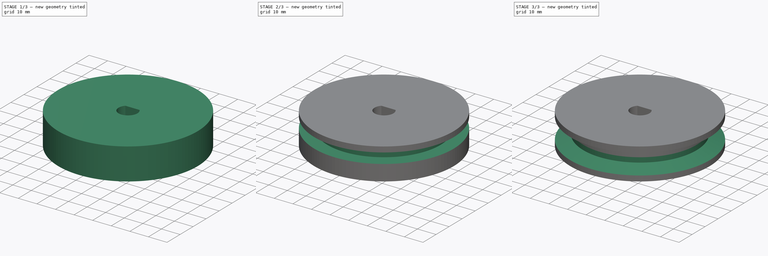
[diagram: build sequence overview — one tinted view per stage of 3, left to right]
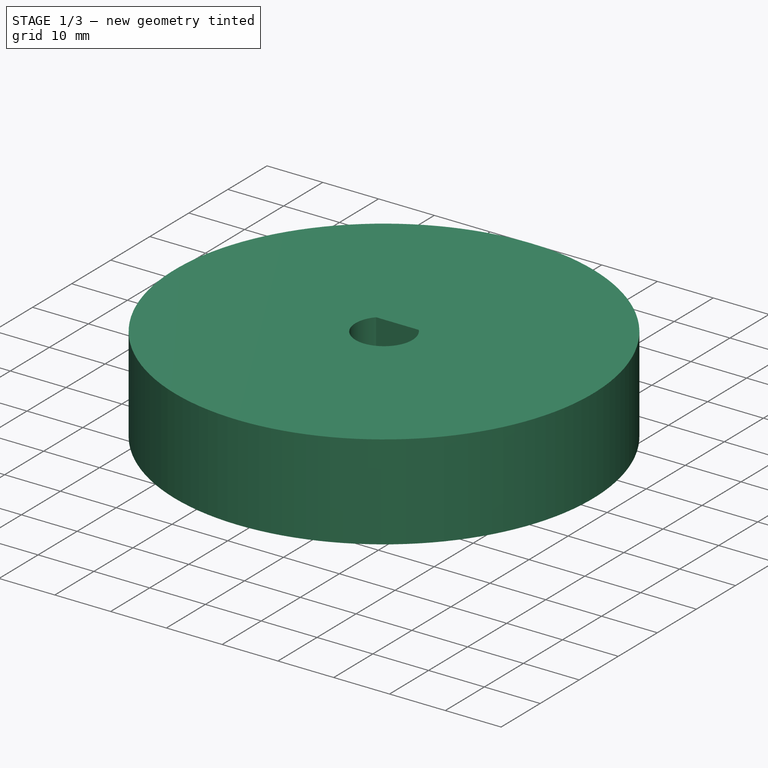
[diagram: stage 1 of 3 — iso view after this stage's code; geometry added in this stage tinted green]
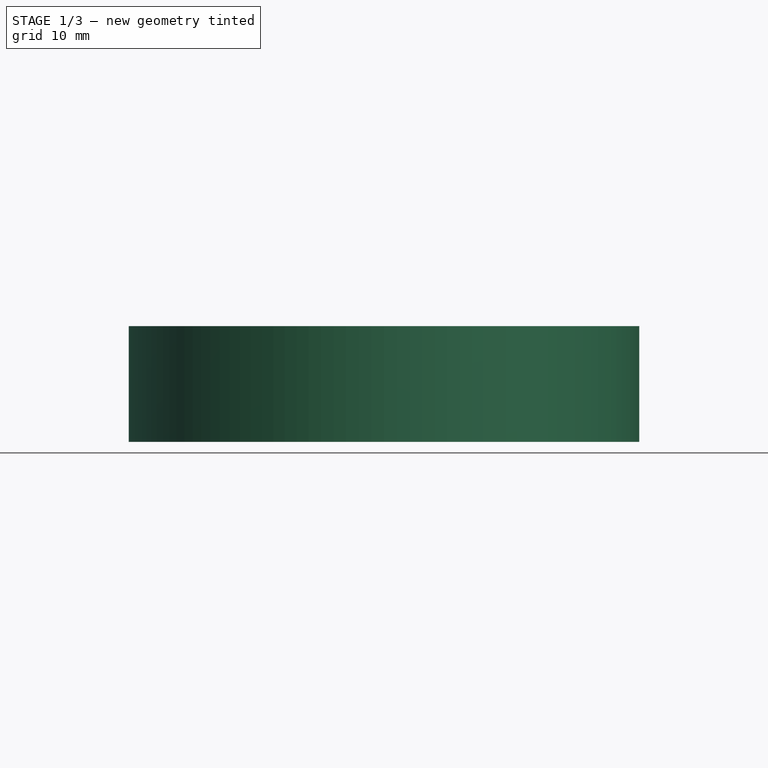
[diagram: stage 1 of 3 — front view after this stage's code; geometry added in this stage tinted green]
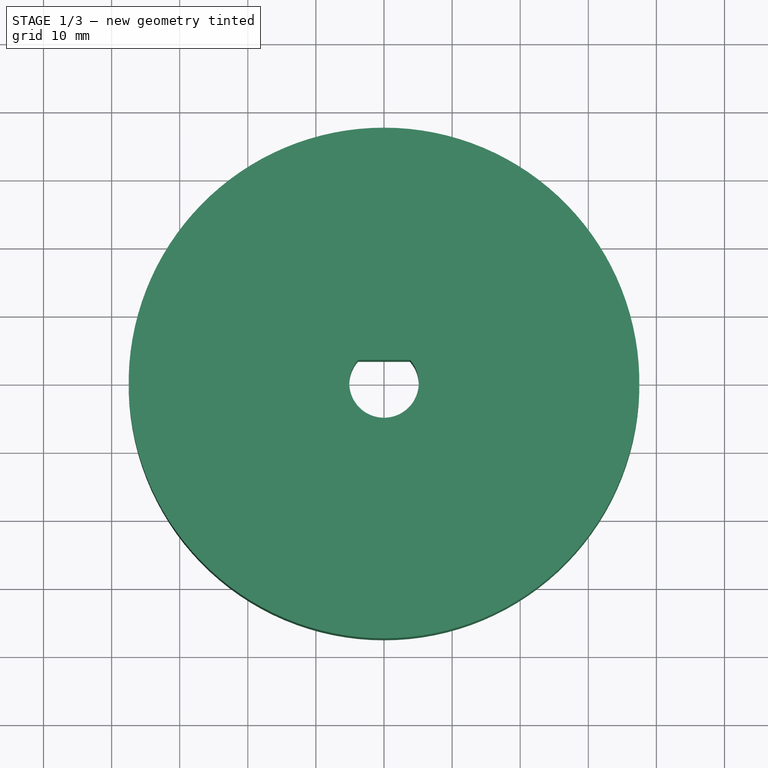
[diagram: stage 1 of 3 — top view after this stage's code; geometry added in this stage tinted green]
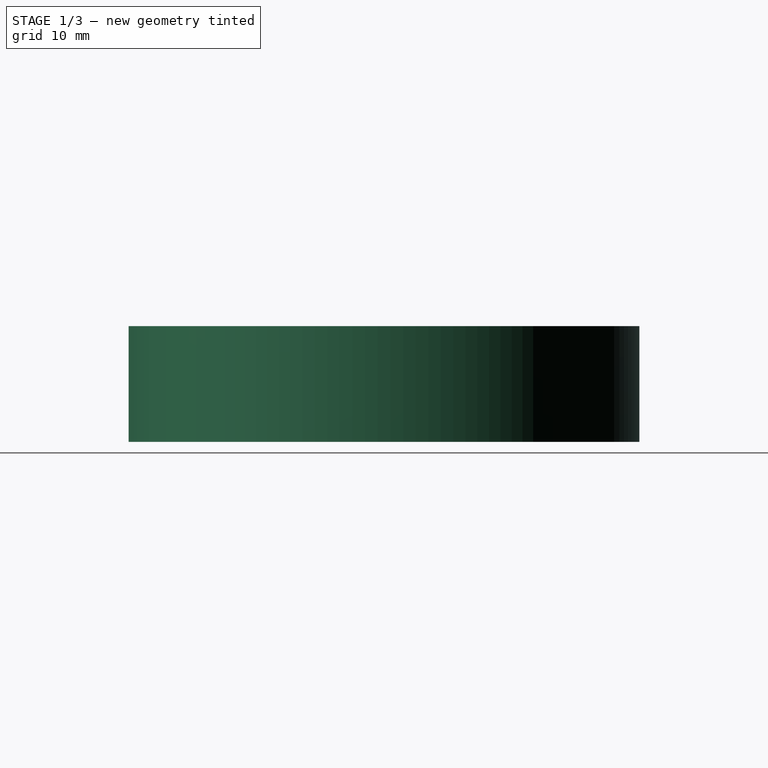
[diagram: stage 1 of 3 — right view after this stage's code; geometry added in this stage tinted green]
FCSTD DOCUMENT  (FreeCAD 0.22R35370 (Git))
Label: pulley3
License: All rights reserved
LicenseURL: http://en.wikipedia.org/wiki/All_rights_reserved
objects: Sketcher::SketchObject×4, PartDesign::Mirrored×2, PartDesign::Pad×1, PartDesign::Groove×1, PartDesign::Pocket×1, PartDesign::Body×1
note: 13 computed .brp shape members not serialized (recipe doc carries the construction recipe); baked Part::Feature solids carry a one-line shape summary decoded from their .brp

FEATURE [Sketcher::SketchObject] Sketch
  FullyConstrained = true
  MapMode = 5
  Support = -> [XY_Plane]
  sketch-geometry (11):
    g0: LineSegment StartX=1.15e-14 StartY=5.8 StartZ=0 EndX=1.65 EndY=5.8 EndZ=0
    g1: LineSegment StartX=1.65 StartY=5.8 StartZ=0 EndX=1.65 EndY=4.82571 EndZ=0
    g2: ArcOfCircle CenterX=0 CenterY=0 CenterZ=0 NormalX=0 NormalY=0 NormalZ=1 AngleXU=0 Radius=37.5 StartAngle=4.71239 EndAngle=7.85398
    g3: LineSegment StartX=1.15e-14 StartY=37.5 StartZ=0 EndX=1.15e-14 EndY=5.8 EndZ=0
    g4: LineSegment StartX=-9e-16 StartY=-5.1 StartZ=0 EndX=-6.9e-15 EndY=-37.5 EndZ=0
    g5: LineSegment StartX=1.15e-14 StartY=5.8 StartZ=0 EndX=3e-16 EndY=5.1 EndZ=0
    g6: ArcOfCircle CenterX=0 CenterY=0 CenterZ=0 NormalX=0 NormalY=0 NormalZ=1 AngleXU=0 Radius=5.1 StartAngle=1.24134 EndAngle=1.5708
    g7: LineSegment StartX=0 StartY=3.4 StartZ=0 EndX=3.80132 EndY=3.4 EndZ=0
    g8: ArcOfCircle CenterX=0 CenterY=0 CenterZ=0 NormalX=0 NormalY=0 NormalZ=1 AngleXU=0 Radius=5.1 StartAngle=4.71239 EndAngle=7.01291
    g9: ArcOfCircle CenterX=0 CenterY=0 CenterZ=0 NormalX=0 NormalY=0 NormalZ=1 AngleXU=0 Radius=5.1 StartAngle=0.729728 EndAngle=1.24134
    g10: LineSegment StartX=0 StartY=3.4 StartZ=0 EndX=3e-16 EndY=5.1 EndZ=0
  constraints (31):
    c: Coincident(g8,g-1)
    c: PointOnObject(g8,g-2)
    c: Horizontal(g0)
    c: Coincident(g0,g1)
    c: Coincident(g1,g9)
    c: Vertical(g1)
    c: Distance(g0) = 1.65
    c: Coincident(g2,g8)
    c: PointOnObject(g2,g-2)
    c: PointOnObject(g2,g-2)
    c: DistanceY(g8,g0) = 10.9
    c: Coincident(g3,g2)
    c: Coincident(g3,g0)
    c: Vertical(g3)
    c: Coincident(g4,g8)
    c: Coincident(g4,g2)
    c: Diameter(g2) = 75  'D2'
    c: Coincident(g5,g0)
    c: PointOnObject(g5,g-2)
    c: Coincident(g6,g8)
    c: Coincident(g6,g9)
    c: Coincident(g6,g5)
    c: PointOnObject(g7,g-2)
    c: Horizontal(g7)
    c: DistanceY(g8,g7) = 8.5
    c: Coincident(g8,g9)
    c: Coincident(g8,g9)
    c: Diameter(g8) = 10.2
    c: Coincident(g8,g7)
    c: Coincident(g10,g7)
    c: Coincident(g10,g5)
FEATURE [Sketcher::SketchObject] Sketch001
  FullyConstrained = true
  MapMode = 5
  Placement = pos=(0,0,0) rot=(0.57735,0.57735,0.57735;2.0944rad)
  Support = -> [YZ_Plane]
  expr: Constraints[8] = Sketch.Constraints.D2 / 2
  sketch-geometry (4):
    g0: LineSegment StartX=37.5 StartY=0 StartZ=0 EndX=37.5 EndY=5.6 EndZ=0
    g1: LineSegment StartX=37.5 StartY=5.6 StartZ=0 EndX=30.5 EndY=2.6 EndZ=0
    g2: LineSegment StartX=30.5 StartY=2.6 StartZ=0 EndX=30.5 EndY=0 EndZ=0
    g3: LineSegment StartX=30.5 StartY=0 StartZ=0 EndX=37.5 EndY=0 EndZ=0
  constraints (12):
    c: PointOnObject(g0,g-1)
    c: Vertical(g0)
    c: Coincident(g0,g1)
    c: Coincident(g1,g2)
    c: PointOnObject(g2,g-1)
    c: Vertical(g2)
    c: Coincident(g2,g3)
    c: Coincident(g3,g0)
    c: DistanceX(g0) = 37.5
    c: Distance(g0) = 5.6
    c: DistanceY(g2,g2) = 2.6
    c: DistanceX(g3,g3) = 7
FEATURE [PartDesign::Pad] Pad
  Direction = (0,0,1)
  Length = 17
  Length2 = 10
  Midplane = true
  Profile = -> Sketch
  ReferenceAxis = -> Sketch [N_Axis]
  Type = 0
FEATURE [PartDesign::Mirrored] Mirrored
  BaseFeature = -> Pad
  MirrorPlane = -> Sketch [V_Axis]
  Originals = -> [Pad]
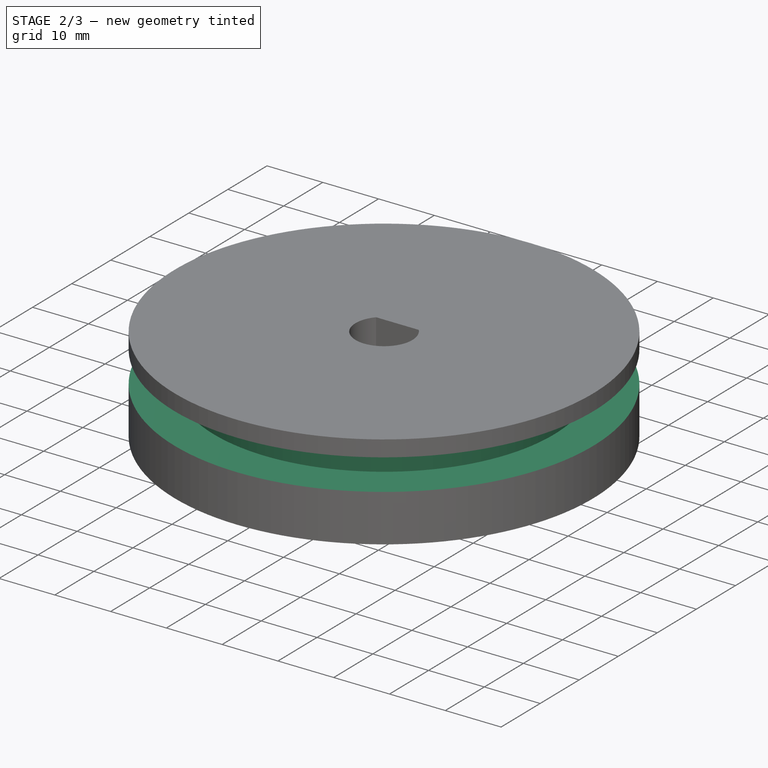
[diagram: stage 2 of 3 — iso view after this stage's code; geometry added in this stage tinted green]
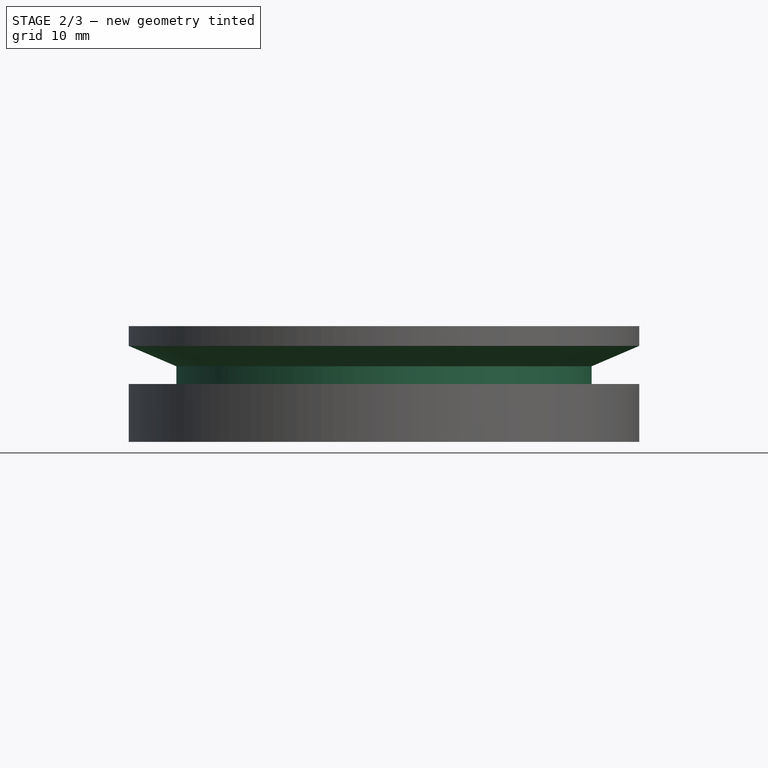
[diagram: stage 2 of 3 — front view after this stage's code; geometry added in this stage tinted green]
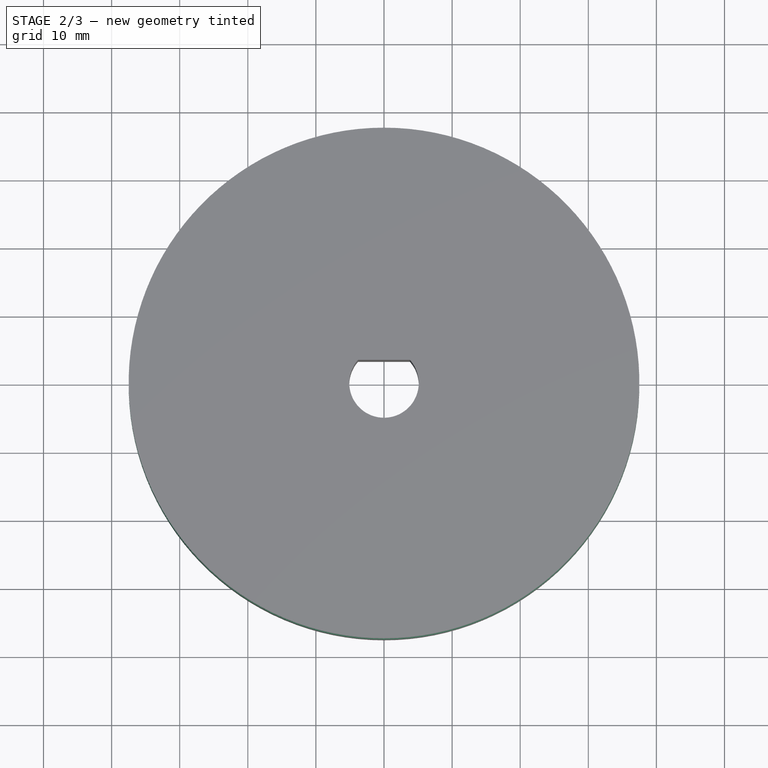
[diagram: stage 2 of 3 — top view after this stage's code; geometry added in this stage tinted green]
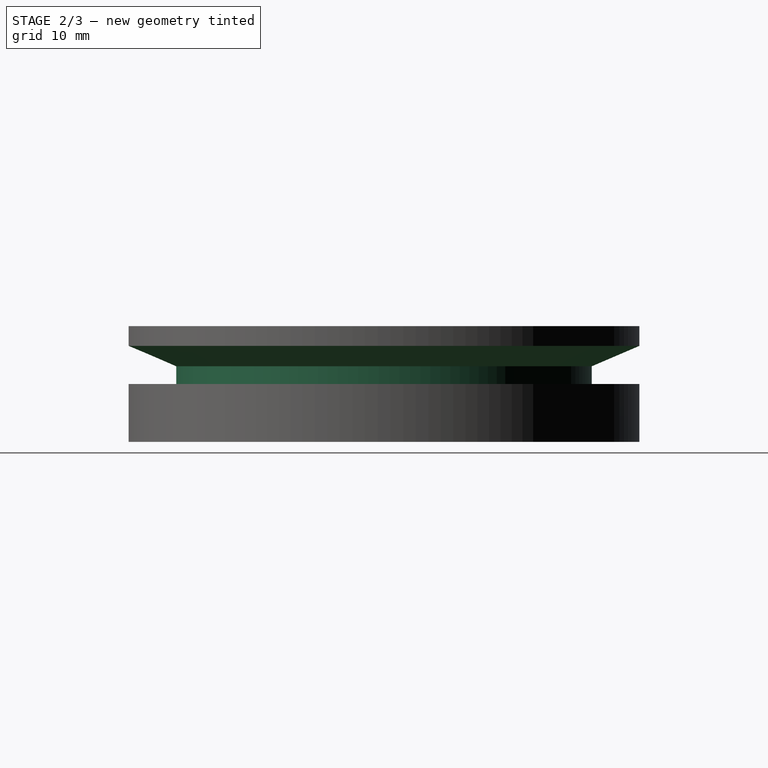
[diagram: stage 2 of 3 — right view after this stage's code; geometry added in this stage tinted green]
FEATURE [PartDesign::Groove] Groove
  Angle = 360
  Angle2 = 60
  Axis = (0,0,1)
  Base = (0,0,0)
  BaseFeature = -> Mirrored
  Profile = -> Sketch001
  ReferenceAxis = -> Sketch001 [V_Axis]
  Type = 0
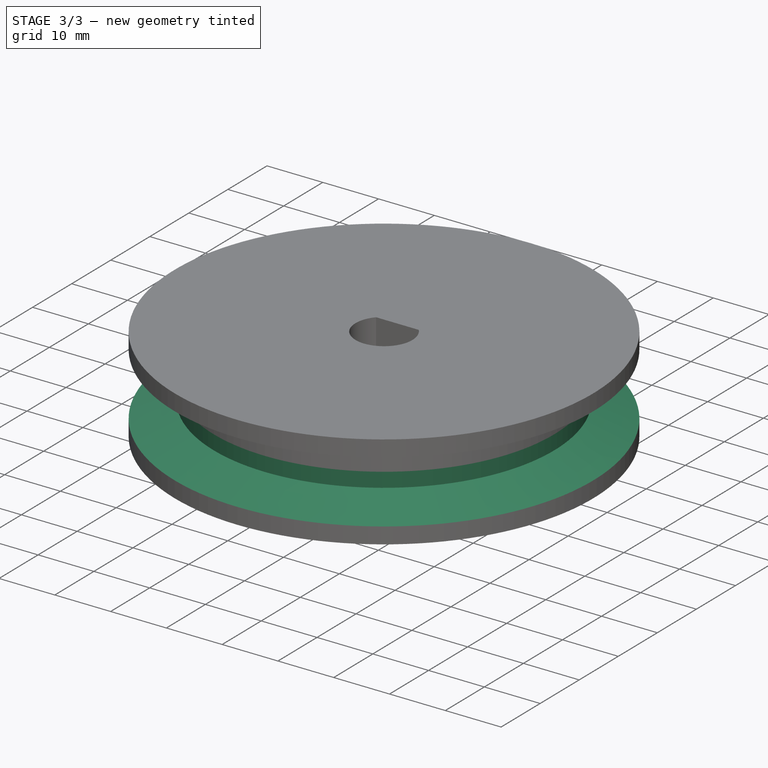
[diagram: stage 3 of 3 — iso view after this stage's code; geometry added in this stage tinted green]
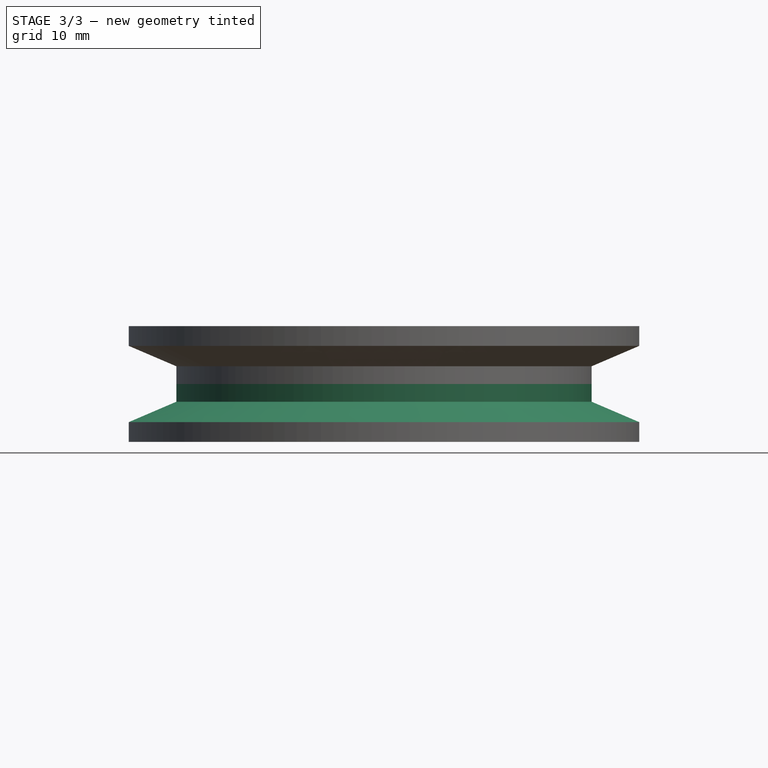
[diagram: stage 3 of 3 — front view after this stage's code; geometry added in this stage tinted green]
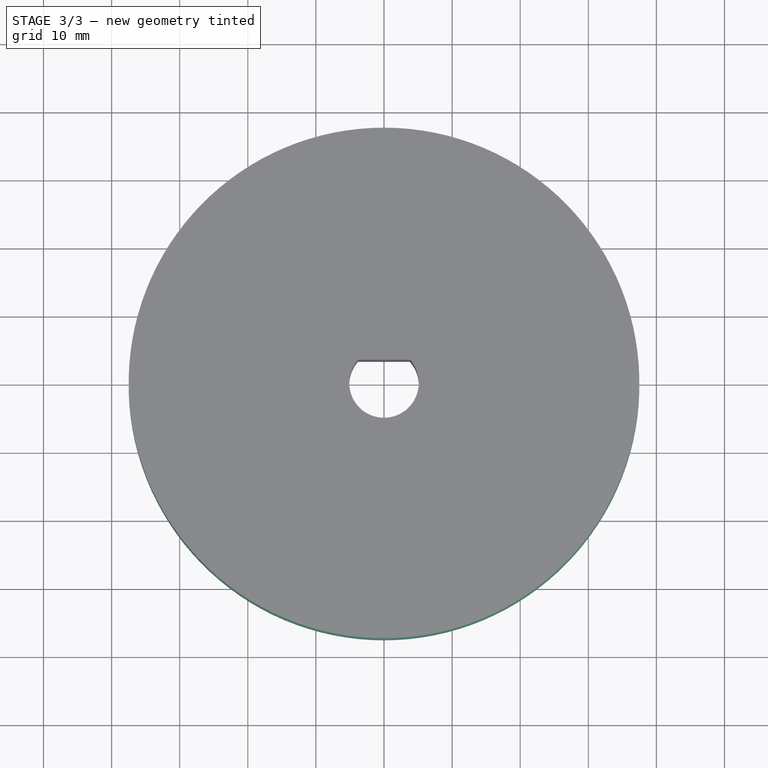
[diagram: stage 3 of 3 — top view after this stage's code; geometry added in this stage tinted green]
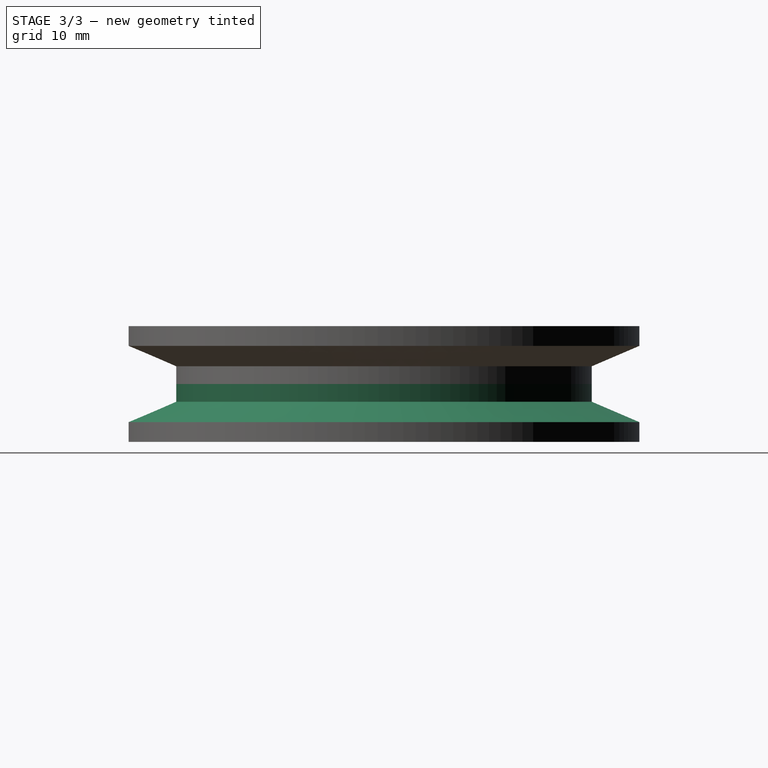
[diagram: stage 3 of 3 — right view after this stage's code; geometry added in this stage tinted green]
FEATURE [PartDesign::Mirrored] Mirrored001
  BaseFeature = -> Groove
  MirrorPlane = -> Sketch001 [H_Axis]
  Originals = -> [Groove]
FEATURE [Sketcher::SketchObject] Sketch002
  FullyConstrained = true
  MapMode = 5
  Support = -> [XY_Plane]
  sketch-geometry (1):
    g0: Circle CenterX=0 CenterY=0 CenterZ=0 NormalX=0 NormalY=0 NormalZ=1 AngleXU=0 Radius=10.1
  constraints (2):
    c: Coincident(g0,g-1)
    c: Diameter(g0) = 20.2
FEATURE [Sketcher::SketchObject] Sketch003
  FullyConstrained = false
  MapMode = 5
  Support = -> [XY_Plane]
  sketch-geometry (2):
    g0: Circle CenterX=0 CenterY=0 CenterZ=0 NormalX=0 NormalY=0 NormalZ=1 AngleXU=0 Radius=109.255
    g1: Circle CenterX=0 CenterY=0 CenterZ=0 NormalX=0 NormalY=0 NormalZ=1 AngleXU=0 Radius=59.25
  constraints (3):
    c: Coincident(g0,g-1)
    c: Coincident(g1,g0)
    c: Diameter(g1) = 118.5
FEATURE [PartDesign::Pocket] Pocket
  BaseFeature = -> Mirrored001
  Direction = (0,0,-1)
  Length = 5
  Length2 = 5
  Midplane = true
  Profile = -> Sketch003
  ReferenceAxis = -> Sketch003 [N_Axis]
  Type = 1
FEATURE [PartDesign::Body] Body
  Group = -> [Sketch,Sketch001,Pad,Mirrored,Groove,Mirrored001,Sketch002,Sketch003,Pocket]
  Origin = -> Origin
  Tip = -> Pocket
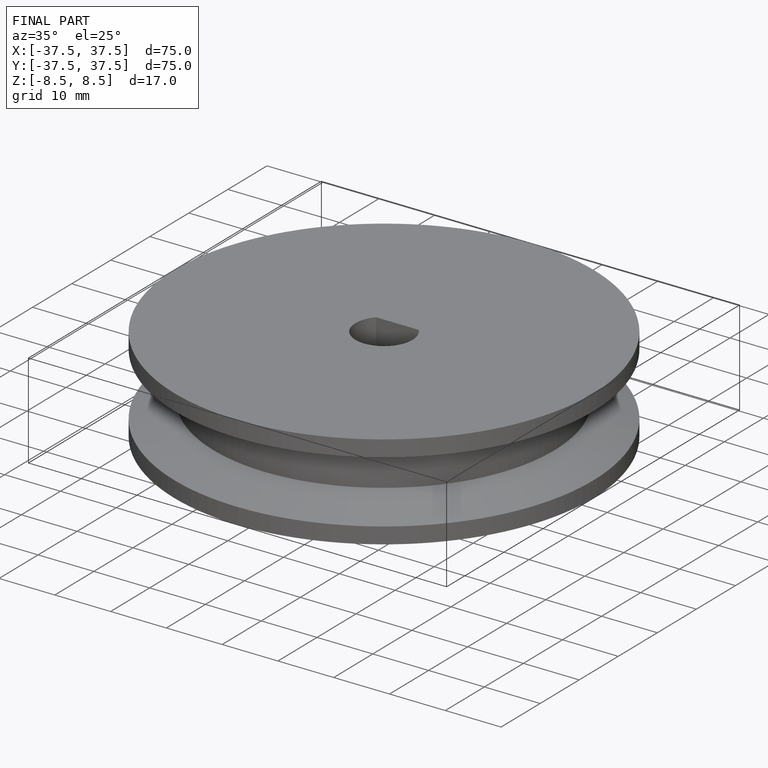
[diagram: finished part — iso view with bounding-box wireframe]
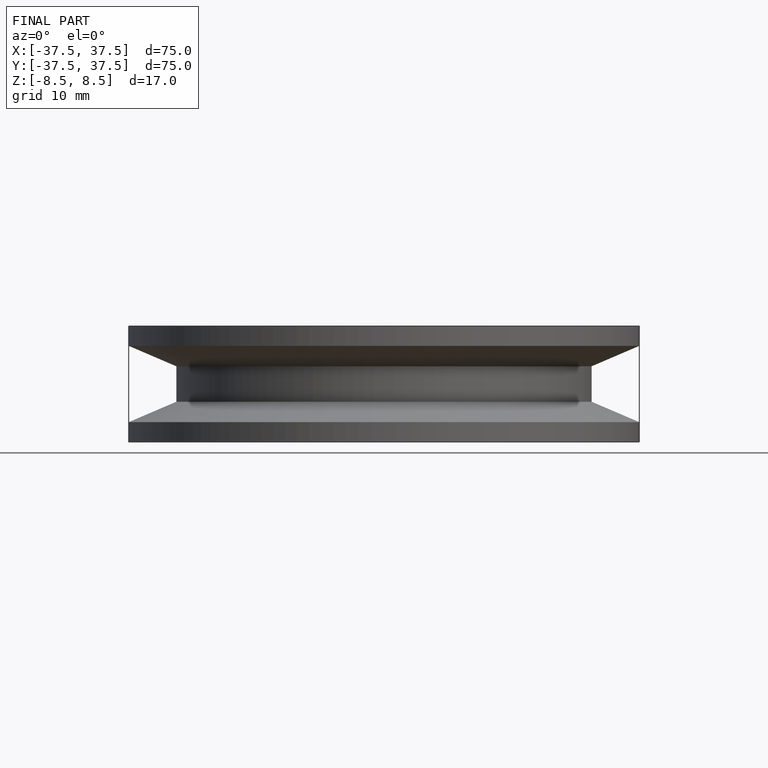
[diagram: finished part — front view with bounding-box wireframe]
